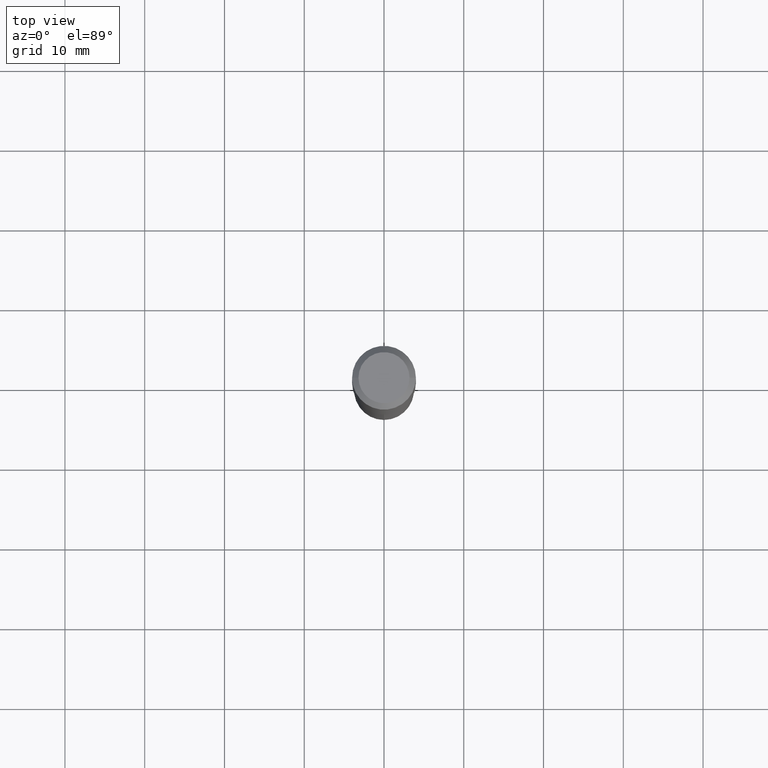
[diagram: clean part render]
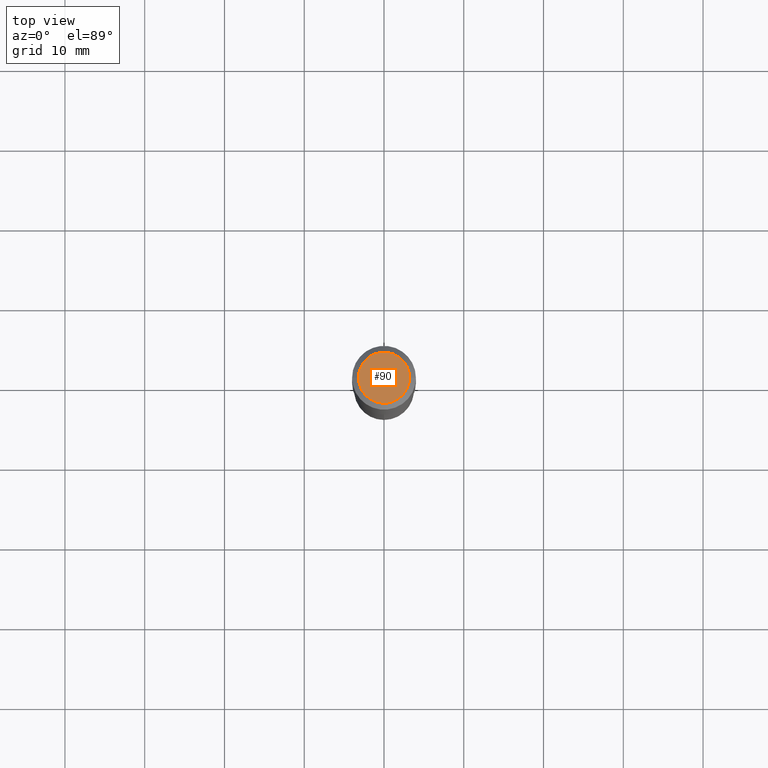
[diagram: same view with one face highlighted and labeled with its STEP entity id]
A machine part, top view. The second image highlights one B-rep face of the part: STEP entity #90.
In plain terms, the highlighted planar face has unit normal (0, -0, -1).
Its self-contained STEP definition (entity closure, byte-faithful):
#54 = EDGE_CURVE ( 'NONE', #260, #363, #181, .T. ) ;
#58 = CARTESIAN_POINT ( 'NONE',  ( -0.1260000000000000009, 9.348441284752484904E-16, 3.860086710906114178E-18 ) ) ;
#84 = PLANE ( 'NONE',  #254 ) ;
#86 = CARTESIAN_POINT ( 'NONE',  ( -9.439721640706201686E-47, 1.347742071746726764E-32, 3.860086710912459732E-18 ) ) ;
#90 = ADVANCED_FACE ( 'NONE', ( #265 ), #84, .F. ) ;
#104 = ORIENTED_EDGE ( 'NONE', *, *, #180, .T. ) ;
#145 = EDGE_LOOP ( 'NONE', ( #104, #396 ) ) ;
#150 = CIRCLE ( 'NONE', #379, 0.1260000000000000009 ) ;
#180 = EDGE_CURVE ( 'NONE', #363, #260, #150, .T. ) ;
#181 = CIRCLE ( 'NONE', #444, 0.1260000000000000009 ) ;
#249 = CARTESIAN_POINT ( 'NONE',  ( 0.1260000000000000009, -1.027466422270894443E-15, 3.860086710919128072E-18 ) ) ;
#254 = AXIS2_PLACEMENT_3D ( 'NONE', #391, #467, #359 ) ;
#260 = VERTEX_POINT ( 'NONE', #249 ) ;
#262 = CARTESIAN_POINT ( 'NONE',  ( -9.439721640706201686E-47, 1.347742071746726764E-32, 3.860086710912459732E-18 ) ) ;
#265 = FACE_OUTER_BOUND ( 'NONE', #145, .T. ) ;
#269 = DIRECTION ( 'NONE',  ( -2.445468806185136597E-29, 3.491481338843145583E-15, 1.000000000000000000 ) ) ;
#320 = DIRECTION ( 'NONE',  ( -2.445468806185136597E-29, 3.491481338843145583E-15, 1.000000000000000000 ) ) ;
#359 = DIRECTION ( 'NONE',  ( -1.000000000000000000, 6.982962677686265922E-15, -4.876176775795935793E-29 ) ) ;
#363 = VERTEX_POINT ( 'NONE', #58 ) ;
#379 = AXIS2_PLACEMENT_3D ( 'NONE', #86, #320, #460 ) ;
#391 = CARTESIAN_POINT ( 'NONE',  ( -4.719860820353100843E-47, 6.738710358733633822E-33, 1.930043355456229866E-18 ) ) ;
#396 = ORIENTED_EDGE ( 'NONE', *, *, #54, .T. ) ;
#418 = DIRECTION ( 'NONE',  ( 1.000000000000000000, -6.982962677686265922E-15, 4.876281427513067258E-29 ) ) ;
#444 = AXIS2_PLACEMENT_3D ( 'NONE', #262, #269, #418 ) ;
#460 = DIRECTION ( 'NONE',  ( 1.000000000000000000, -6.982962677686265922E-15, 4.876281427513067258E-29 ) ) ;
#467 = DIRECTION ( 'NONE',  ( 2.438088387897960049E-29, -3.491481338843145188E-15, -1.000000000000000000 ) ) ;